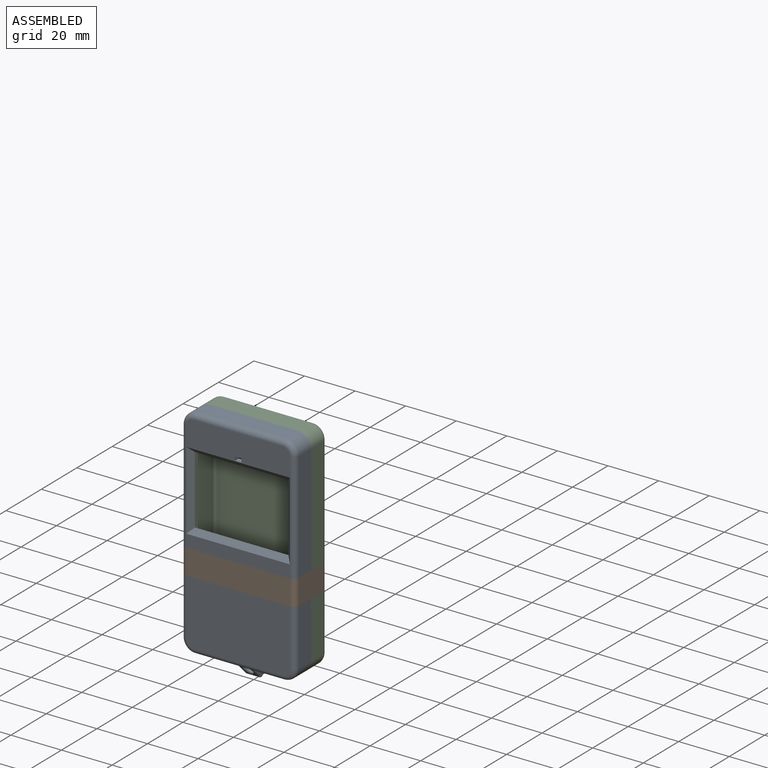
[diagram: assembled view]
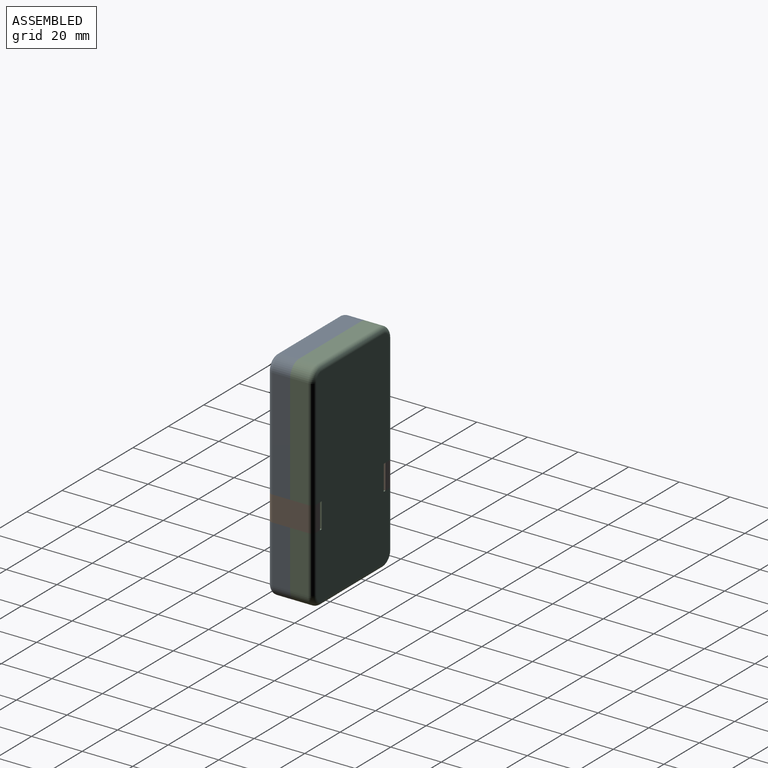
[diagram: assembled view, second angle]
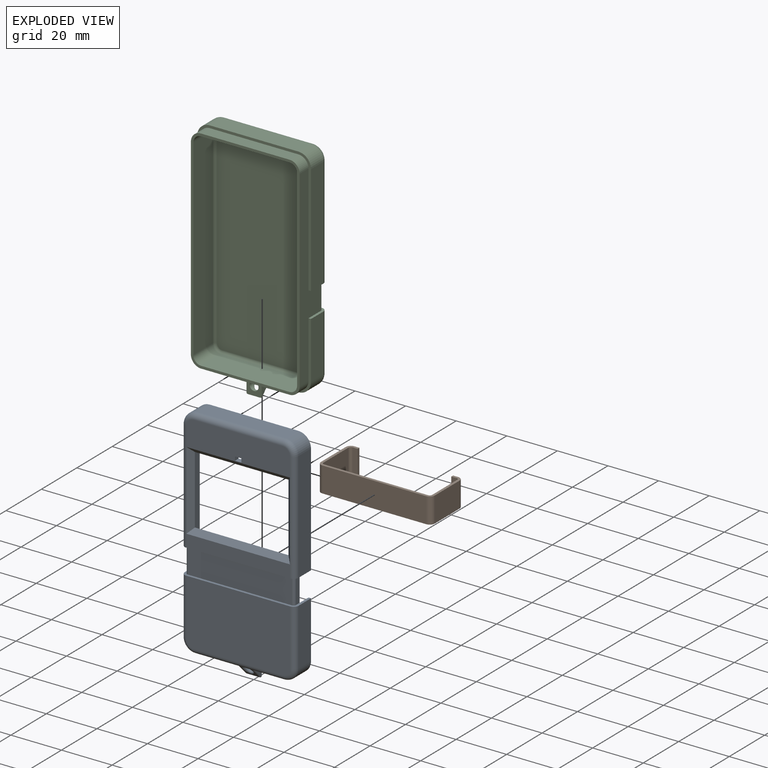
[diagram: exploded view]
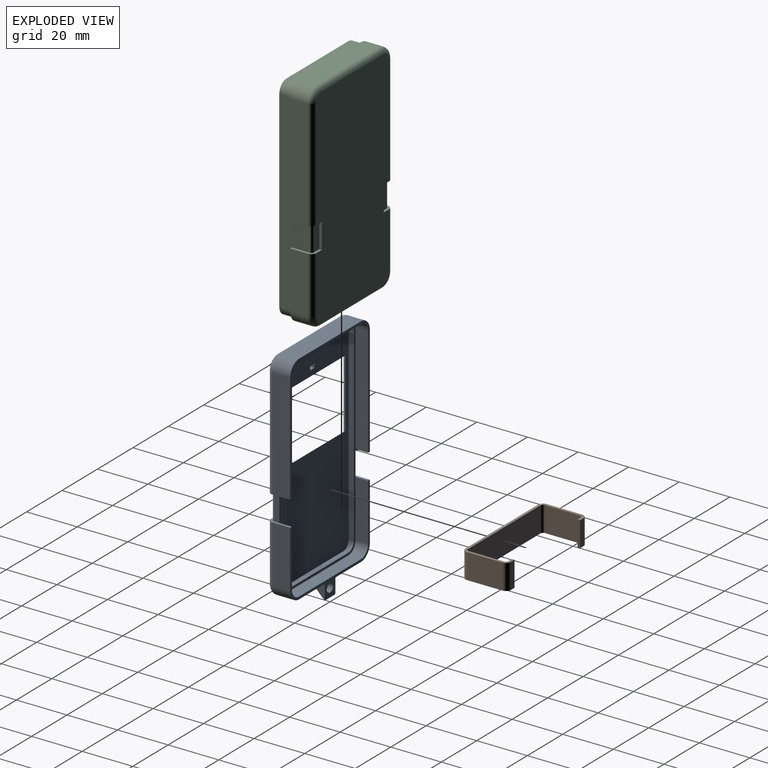
[diagram: exploded view, second angle]
ASSEMBLY  parts=3 mates=4
PART A: 75 faces, bbox 45.8x9x92.5 mm
  f0: plane 41x25.5mm, normal (0,1,0), area 1041.6mm2, adj f6,f7,f24,f26,f28,f70
  f1: plane 43.5x7mm, normal (-1,0,0), area 304.5mm2, adj f5,f20,f22,f68
  f2: plane 22.5x7mm, normal (1,0,0), area 157.5mm2, adj f4,f7,f19,f70
  f3: plane 43.5x5mm, normal (1,0,0), area 217.5mm2, adj f5,f30,f48,f68
  f4: plane 45x33.5mm, normal (0,-1,0), area 120.5mm2, adj f2,f10,f11,f14,f17,f18,f19,f31
  f5: plane 48.5x45mm, normal (0,-1,0), area 136.1mm2, adj f1,f3,f8,f15,f16,f20,f21,f30
  f6: cylinder r=2mm len=22.5mm, axis (0,0,1), area 70.7mm2, adj f0,f14,f24,f70
  f7: cylinder r=2mm len=22.5mm, axis (0,0,-1), area 70.7mm2, adj f0,f2,f28,f70
  f8: plane 43.5x5mm, normal (-1,0,0), area 217.5mm2, adj f5,f34,f48,f68
  f9: plane 41x5mm, normal (0,1,0), area 205mm2, adj f22,f29,f52,f68
  f10: plane 22.5x5mm, normal (1,0,0), area 112.5mm2, adj f4,f31,f48,f70
  f11: plane 35x5mm, normal (0,0,1), area 175mm2, adj f4,f31,f32,f48
  f12: plane 41x10.5mm, normal (0,1,0), area 422.9mm2, adj f22,f23,f25,f27,f29,f36,f37,f38
  f13: plane 82x41mm, normal (0,-1,0), area 2351.5mm2, adj f36,f37,f38,f39,f40,f41,f42,f43
  f14: plane 22.5x7mm, normal (-1,0,0), area 157.5mm2, adj f4,f6,f18,f70
  f15: plane 43.5x7mm, normal (1,0,0), area 304.5mm2, adj f5,f21,f29,f68
  f16: plane 35x7mm, normal (0,0,1), area 245mm2, adj f5,f20,f21,f25
  f17: plane 35x7mm, normal (0,0,-1), area 199.3mm2, adj f4,f18,f19,f26,f60,f62,f64,f65
  f18: cylinder r=5mm len=7mm, axis (0,-1,0), area 55mm2, adj f4,f14,f17,f24
  f19: cylinder r=5mm len=7mm, axis (0,1,0), area 55mm2, adj f2,f4,f17,f28
  f20: cylinder r=5mm len=7mm, axis (0,1,0), area 55mm2, adj f1,f5,f16,f23
  f21: cylinder r=5mm len=7mm, axis (0,-1,0), area 55mm2, adj f5,f15,f16,f27
  f22: cylinder r=2mm len=43.5mm, axis (0,0,1), area 136.7mm2, adj f1,f9,f12,f23,f51,f68
  f23: torus R=3mm, axis (0,1,0), area 21.1mm2, adj f12,f20,f22,f25
  f24: torus R=3mm, axis (0,1,0), area 21.1mm2, adj f0,f6,f18,f26
  f25: cylinder r=2mm len=35mm, axis (1,0,0), area 110mm2, adj f12,f16,f23,f27
  f26: cylinder r=2mm len=35mm, axis (-1,0,0), area 110mm2, adj f0,f17,f24,f28
  f27: torus R=3mm, axis (0,1,0), area 21.1mm2, adj f12,f21,f25,f29
  f28: torus R=3mm, axis (0,1,0), area 21.1mm2, adj f0,f7,f19,f26
  f29: cylinder r=2mm len=43.5mm, axis (0,0,-1), area 136.7mm2, adj f9,f12,f15,f27,f50,f68
  f30: cylinder r=4mm len=5mm, axis (0,1,0), area 31.4mm2, adj f3,f5,f35,f48
  f31: cylinder r=4mm len=5mm, axis (0,1,0), area 31.4mm2, adj f4,f10,f11,f48
  f32: cylinder r=4mm len=5mm, axis (0,1,0), area 31.4mm2, adj f4,f11,f33,f48
  f33: plane 22.5x5mm, normal (-1,0,0), area 112.5mm2, adj f4,f32,f48,f70
  f34: cylinder r=4mm len=5mm, axis (0,1,0), area 31.4mm2, adj f5,f8,f35,f48
  f35: plane 35x5mm, normal (0,0,-1), area 175mm2, adj f5,f30,f34,f48
  f36: plane 2x1.5mm, normal (1,0,0), area 3mm2, adj f12,f13,f37,f39
  f37: plane 2.5x2mm, normal (0,0,-1), area 5mm2, adj f12,f13,f36,f38
  f38: plane 2x1.5mm, normal (-1,0,0), area 3mm2, adj f12,f13,f37,f39
  f39: plane 2.5x2mm, normal (0,0,1), area 5mm2, adj f12,f13,f36,f38
  f40: plane 76x2mm, normal (-1,0,0), area 152mm2, adj f13,f41,f47,f48
  f41: cylinder r=3mm len=3mm, axis (0,1,0), area 9.4mm2, adj f13,f40,f42,f48
  f42: plane 35x2mm, normal (0,0,1), area 70mm2, adj f13,f41,f43,f48
  f43: cylinder r=3mm len=3mm, axis (0,1,0), area 9.4mm2, adj f13,f42,f44,f48
  f44: plane 76x2mm, normal (1,0,0), area 152mm2, adj f13,f43,f45,f48
  f45: cylinder r=3mm len=3mm, axis (0,1,0), area 9.4mm2, adj f13,f44,f46,f48
  f46: plane 35x2mm, normal (0,0,-1), area 70mm2, adj f13,f45,f47,f48
  f47: cylinder r=3mm len=3mm, axis (0,1,0), area 9.4mm2, adj f13,f40,f46,f48
  f48: plane 84x43mm, normal (0,-1,0), area 244mm2, adj f3,f8,f10,f11,f30,f31,f32,f33
  f49: plane 41x2mm, normal (0,0.71,-0.71), area 110.3mm2, adj f12,f13,f50,f51
  f50: plane 31x2mm, normal (-0.71,0.71,0), area 82mm2, adj f13,f29,f49,f52
  f51: plane 31x2mm, normal (0.71,0.71,0), area 82mm2, adj f13,f22,f49,f52
  f52: plane 41x2mm, normal (0,0.71,0.71), area 110.3mm2, adj f9,f13,f50,f51
  f53: cylinder r=1mm len=5mm, axis (-1,0,0), area 3.9mm2, adj f4,f54,f58,f61
  f54: plane 5.56x5.56mm, normal (0,0.71,-0.71), area 16.8mm2, adj f53,f59,f63,f64,f67
  f55: plane 5.21x5mm, normal (1,0,0), area 13.5mm2, adj f4,f58,f59,f60
  f56: plane 5.21x5mm, normal (-1,0,0), area 13.5mm2, adj f4,f61,f63,f66
  f57: cylinder r=1.75mm len=5.49mm, axis (0,-1,0), area 35.3mm2, adj f4,f67
  f58: torus R=0.5mm, axis (1,0,0), area 0.5mm2, adj f4,f53,f55,f59
  f59: cylinder r=0.5mm len=5.91mm, axis (0,-0.71,-0.71), area 5.9mm2, adj f54,f55,f58,f62
  f60: cylinder r=0.5mm len=5.21mm, axis (0,1,0), area 4.1mm2, adj f4,f17,f55,f62
  f61: torus R=0.5mm, axis (1,0,0), area 0.5mm2, adj f4,f53,f56,f63
  f62: bspline ~1.66x1.04mm, area 0.9mm2, adj f17,f59,f60,f64
  f63: cylinder r=0.5mm len=5.91mm, axis (0,0.71,0.71), area 5.9mm2, adj f54,f56,f61,f65
  f64: cylinder r=0.5mm len=5mm, axis (-1,0,0), area 2mm2, adj f17,f54,f62,f65
  f65: bspline ~1.66x1mm, area 0.9mm2, adj f17,f63,f64,f66
  f66: cylinder r=0.5mm len=5.21mm, axis (0,-1,0), area 4.1mm2, adj f4,f17,f56,f65
  f67: bspline ~4.85x4.5mm, area 11.9mm2, adj f54,f57
  f68: plane 45x9mm, normal (0,0,-1), area 59.7mm2, adj f1,f3,f5,f8,f9,f15,f22,f29
  f69: plane 10x2mm, normal (-1,0,0), area 20mm2, adj f48,f68,f70,f71
  f70: plane 45x9mm, normal (0,0,1), area 59.7mm2, adj f0,f2,f4,f6,f7,f10,f14,f33
  f71: cylinder r=1mm len=10mm, axis (0,0,-1), area 15.7mm2, adj f68,f69,f70,f72
  f72: plane 41x10mm, normal (0,1,0), area 410mm2, adj f68,f70,f71,f73
  f73: cylinder r=1mm len=10mm, axis (0,0,-1), area 15.7mm2, adj f68,f70,f72,f74
  f74: plane 10x2mm, normal (1,0,0), area 20mm2, adj f48,f68,f70,f73
PART B: 22 faces, bbox 45x10x18 mm
  f0: plane 10x2mm, normal (0,0,-1), area 20mm2, adj f1,f19,f20,f21
  f1: plane 10x1mm, normal (1,0,0), area 10mm2, adj f0,f2,f20,f21
  f2: plane 10x2mm, normal (0,0,1), area 20mm2, adj f1,f3,f20,f21
  f3: cylinder r=1mm len=10mm, axis (0,1,0), area 15.7mm2, adj f2,f4,f20,f21
  f4: plane 14x10mm, normal (1,0,0), area 140mm2, adj f3,f5,f20,f21
  f5: cylinder r=1mm len=10mm, axis (0,1,0), area 15.7mm2, adj f4,f6,f20,f21
  f6: plane 41x10mm, normal (0,0,-1), area 410mm2, adj f5,f7,f20,f21
  f7: cylinder r=1mm len=10mm, axis (0,1,0), area 15.7mm2, adj f6,f8,f20,f21
  f8: plane 14x10mm, normal (-1,0,0), area 140mm2, adj f7,f9,f20,f21
  f9: cylinder r=1mm len=10mm, axis (0,1,0), area 15.7mm2, adj f8,f10,f20,f21
  f10: plane 10x2mm, normal (0,0,1), area 20mm2, adj f9,f11,f20,f21
  f11: plane 10x1mm, normal (-1,0,0), area 10mm2, adj f10,f12,f20,f21
  f12: plane 10x2mm, normal (0,0,-1), area 20mm2, adj f11,f13,f20,f21
  f13: cylinder r=2mm len=10mm, axis (0,1,0), area 31.4mm2, adj f12,f14,f20,f21
  f14: plane 14x10mm, normal (1,0,0), area 140mm2, adj f13,f15,f20,f21
  f15: cylinder r=2mm len=10mm, axis (0,1,0), area 31.4mm2, adj f14,f16,f20,f21
  f16: plane 41x10mm, normal (0,0,1), area 410mm2, adj f15,f17,f20,f21
  f17: cylinder r=2mm len=10mm, axis (0,1,0), area 31.4mm2, adj f16,f18,f20,f21
  f18: plane 14x10mm, normal (-1,0,0), area 140mm2, adj f17,f19,f20,f21
  f19: cylinder r=2mm len=10mm, axis (0,1,0), area 31.4mm2, adj f0,f18,f20,f21
  f20: plane 45x18mm, normal (0,-1,0), area 82.4mm2, adj f0,f1,f2,f3,f4,f5,f6,f7
  f21: plane 45x18mm, normal (0,1,0), area 82.4mm2, adj f0,f1,f2,f3,f4,f5,f6,f7
PART C: 74 faces, bbox 45.8x14x92.5 mm
  f0: plane 9x5mm, normal (0,0,-1), area 12.4mm2, adj f3,f5,f8,f22,f36,f69,f70,f73
  f1: plane 9x5mm, normal (0,0,1), area 12.4mm2, adj f2,f4,f7,f8,f10,f18,f71,f72
  f2: plane 10x3mm, normal (0,1,0), area 30mm2, adj f1,f67,f71,f72
  f3: plane 43.5x7mm, normal (-1,0,0), area 304.5mm2, adj f0,f5,f16,f36
  f4: plane 22.5x7mm, normal (1,0,0), area 157.5mm2, adj f1,f7,f10,f15
  f5: plane 48.5x45mm, normal (0,-1,0), area 136.1mm2, adj f0,f3,f11,f12,f16,f17,f18,f19
  f6: cylinder r=2mm len=22.5mm, axis (0,0,1), area 70.7mm2, adj f8,f9,f38,f68
  f7: cylinder r=2mm len=22.5mm, axis (0,0,-1), area 70.7mm2, adj f1,f4,f8,f42
  f8: plane 82x41mm, normal (0,1,0), area 3294.3mm2, adj f0,f1,f6,f7,f36,f37,f38,f39
  f9: plane 22.5x7mm, normal (-1,0,0), area 157.5mm2, adj f6,f10,f14,f68
  f10: plane 45x33.5mm, normal (0,-1,0), area 120.5mm2, adj f1,f4,f9,f13,f14,f15,f18,f22
  f11: plane 43.5x7mm, normal (1,0,0), area 304.5mm2, adj f5,f17,f43,f67
  f12: plane 35x7mm, normal (0,0,1), area 245mm2, adj f5,f16,f17,f39
  f13: plane 35x7mm, normal (0,0,-1), area 199.3mm2, adj f10,f14,f15,f40,f57,f59,f61,f63
  f14: cylinder r=5mm len=7mm, axis (0,-1,0), area 55mm2, adj f9,f10,f13,f38
  f15: cylinder r=5mm len=7mm, axis (0,1,0), area 55mm2, adj f4,f10,f13,f42
  f16: cylinder r=5mm len=7mm, axis (0,1,0), area 55mm2, adj f3,f5,f12,f37
  f17: cylinder r=5mm len=7mm, axis (0,-1,0), area 55mm2, adj f5,f11,f12,f41
  f18: plane 76x12mm, normal (1,0,0), area 450mm2, adj f1,f5,f10,f19,f25,f26,f67,f71
  f19: cylinder r=4mm len=5mm, axis (0,1,0), area 31.4mm2, adj f5,f18,f20,f26
  f20: plane 35x5mm, normal (0,0,1), area 175mm2, adj f5,f19,f21,f26
  f21: cylinder r=4mm len=5mm, axis (0,1,0), area 31.4mm2, adj f5,f20,f22,f26
  f22: plane 76x12mm, normal (-1,0,0), area 450mm2, adj f0,f5,f10,f21,f23,f26,f68,f69
  f23: cylinder r=4mm len=5mm, axis (0,1,0), area 31.4mm2, adj f10,f22,f24,f26
  f24: plane 35x5mm, normal (0,0,-1), area 175mm2, adj f10,f23,f25,f26
  f25: cylinder r=4mm len=5mm, axis (0,1,0), area 31.4mm2, adj f10,f18,f24,f26
  f26: plane 84x43mm, normal (0,-1,0), area 244mm2, adj f18,f19,f20,f21,f22,f23,f24,f25
  f27: plane 80x39mm, normal (0,-1,0), area 3116.6mm2, adj f44,f45,f46,f47,f48,f49,f50,f51
  f28: cylinder r=3mm len=11mm, axis (0,1,0), area 51.8mm2, adj f26,f29,f35,f50
  f29: plane 76x11mm, normal (-1,0,0), area 836mm2, adj f26,f28,f30,f48
  f30: cylinder r=3mm len=11mm, axis (0,-1,0), area 51.8mm2, adj f26,f29,f31,f46
  f31: plane 35x11mm, normal (0,0,-1), area 385mm2, adj f26,f30,f32,f44
  f32: cylinder r=3mm len=11mm, axis (0,1,0), area 51.8mm2, adj f26,f31,f33,f45
  f33: plane 76x11mm, normal (1,0,0), area 836mm2, adj f26,f32,f34,f47
  f34: cylinder r=3mm len=11mm, axis (0,-1,0), area 51.8mm2, adj f26,f33,f35,f49
  f35: plane 35x11mm, normal (0,0,1), area 385mm2, adj f26,f28,f34,f51
  f36: cylinder r=2mm len=43.5mm, axis (0,0,1), area 136.7mm2, adj f0,f3,f8,f37
  f37: torus R=3mm, axis (0,1,0), area 21.1mm2, adj f8,f16,f36,f39
  f38: torus R=3mm, axis (0,1,0), area 21.1mm2, adj f6,f8,f14,f40
  f39: cylinder r=2mm len=35mm, axis (1,0,0), area 110mm2, adj f8,f12,f37,f41
  f40: cylinder r=2mm len=35mm, axis (-1,0,0), area 110mm2, adj f8,f13,f38,f42
  f41: torus R=3mm, axis (0,1,0), area 21.1mm2, adj f8,f17,f39,f43
  f42: torus R=3mm, axis (0,1,0), area 21.1mm2, adj f7,f8,f15,f40
  f43: cylinder r=2mm len=43.5mm, axis (0,0,-1), area 136.7mm2, adj f8,f11,f41,f67
  f44: cylinder r=1mm len=35mm, axis (-1,0,0), area 55mm2, adj f27,f31,f45,f46
  f45: torus R=2mm, axis (0,1,0), area 6.5mm2, adj f27,f32,f44,f47
  f46: torus R=2mm, axis (0,1,0), area 6.5mm2, adj f27,f30,f44,f48
  f47: cylinder r=1mm len=76mm, axis (0,0,-1), area 119.4mm2, adj f27,f33,f45,f49
  f48: cylinder r=1mm len=76mm, axis (0,0,1), area 119.4mm2, adj f27,f29,f46,f50
  f49: torus R=2mm, axis (0,1,0), area 6.5mm2, adj f27,f34,f47,f51
  f50: torus R=2mm, axis (0,1,0), area 6.5mm2, adj f27,f28,f48,f51
  f51: cylinder r=1mm len=35mm, axis (1,0,0), area 55mm2, adj f27,f35,f49,f50
  f52: plane 5.56x5.56mm, normal (0,0.71,-0.71), area 16.8mm2, adj f53,f58,f61,f62,f66
  f53: cylinder r=1mm len=5mm, axis (-1,0,0), area 3.9mm2, adj f10,f52,f56,f60
  f54: plane 5.21x5mm, normal (1,0,0), area 13.5mm2, adj f10,f60,f62,f64
  f55: plane 5.21x5mm, normal (-1,0,0), area 13.5mm2, adj f10,f56,f57,f58
  f56: torus R=0.5mm, axis (1,0,0), area 0.5mm2, adj f10,f53,f55,f58
  f57: cylinder r=0.5mm len=5.21mm, axis (0,1,0), area 4.1mm2, adj f10,f13,f55,f59
  f58: cylinder r=0.5mm len=5.91mm, axis (0,0.71,0.71), area 5.9mm2, adj f52,f55,f56,f59
  f59: bspline ~1.66x1mm, area 0.9mm2, adj f13,f57,f58,f61
  f60: torus R=0.5mm, axis (1,0,0), area 0.5mm2, adj f10,f53,f54,f62
  f61: cylinder r=0.5mm len=5mm, axis (1,0,0), area 2mm2, adj f13,f52,f59,f63
  f62: cylinder r=0.5mm len=5.91mm, axis (0,-0.71,-0.71), area 5.9mm2, adj f52,f54,f60,f63
  f63: bspline ~1.66x1.04mm, area 0.9mm2, adj f13,f61,f62,f64
  f64: cylinder r=0.5mm len=5.21mm, axis (0,-1,0), area 4.1mm2, adj f10,f13,f54,f63
  f65: cylinder r=1.75mm len=5.49mm, axis (0,-1,0), area 35.3mm2, adj f10,f66
  f66: bspline ~4.85x4.5mm, area 11.9mm2, adj f52,f65
  f67: plane 9x5mm, normal (0,0,-1), area 12.4mm2, adj f2,f5,f8,f11,f18,f43,f71,f72
  f68: plane 9x5mm, normal (0,0,1), area 12.4mm2, adj f6,f8,f9,f10,f22,f69,f70,f73
  f69: cylinder r=1mm len=10mm, axis (0,0,-1), area 15.7mm2, adj f0,f22,f68,f70
  f70: plane 10x3mm, normal (0,1,0), area 30mm2, adj f0,f68,f69,f73
  f71: cylinder r=1mm len=10mm, axis (0,0,-1), area 15.7mm2, adj f1,f2,f18,f67
  f72: plane 10x1mm, normal (1,0,0), area 10mm2, adj f1,f2,f8,f67
  f73: plane 10x1mm, normal (-1,0,0), area 10mm2, adj f0,f8,f68,f70
PLACE A rot(axis=(0,0,1),180deg) t=(0.1,-4.43,2.59)mm
PLACE B rot(axis=(1,0,0),90deg) t=(0.1,8.07,35.09)mm
PLACE C rot(axis=(0,0,1),0deg) t=(0.1,4.57,2.59)mm
MATE planar A.f72 <-> B.f6  axis (0,-1,0) through (0.1,-7.93,35.09)mm
MATE planar A.f14 <-> C.f11  axis (1,0,0) through (22.6,-3.43,18.84)mm
MATE planar A.f16 <-> C.f12  axis (0,0,1) through (0.1,-3.43,88.59)mm
MATE planar A.f4 <-> C.f5  axis (0,1,0) through (0.1,0.07,-3.41)mm
